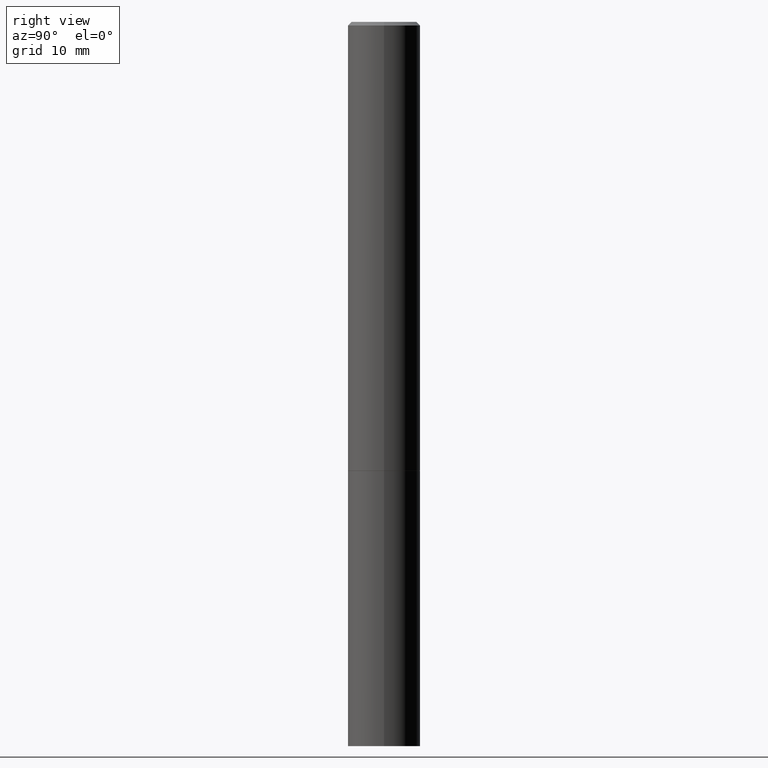
[diagram: clean part render]
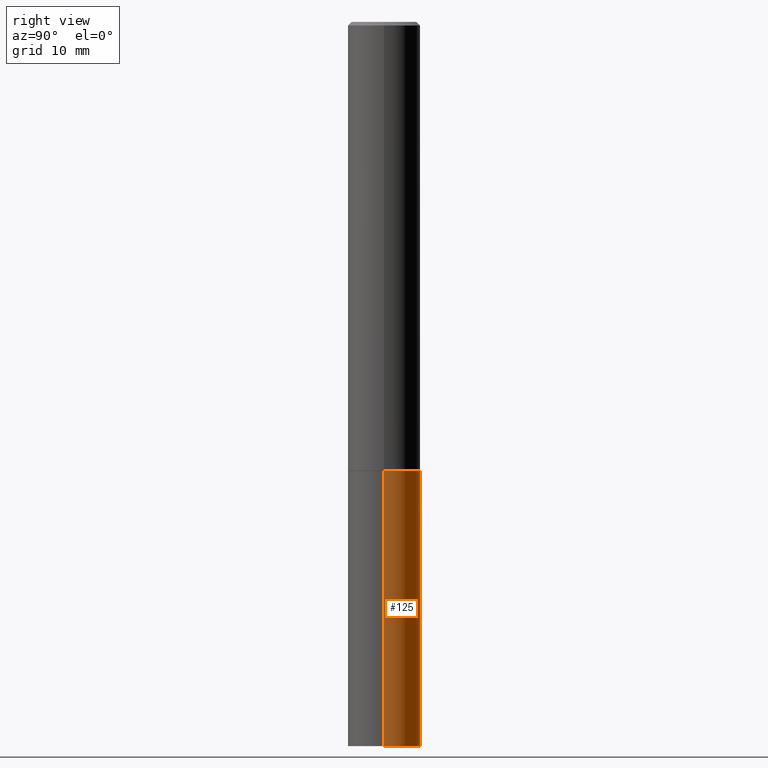
[diagram: same view with one face highlighted and labeled with its STEP entity id]
A machine part, right view. The second image highlights one B-rep face of the part: STEP entity #125.
In plain terms, the highlighted cylindrical surface (edge-blend (fillet) strip) has radius 5 mm, axis along (-0, 0, 1).
Its self-contained STEP definition (entity closure, byte-faithful):
#2 = VERTEX_POINT ( 'NONE', #171 ) ;
#6 = DIRECTION ( 'NONE',  ( -2.445468806185136597E-29, 3.491481338843145583E-15, 1.000000000000000000 ) ) ;
#15 = CARTESIAN_POINT ( 'NONE',  ( 0.1968500000000000250, -9.896953003084776152E-15, -2.440900000000000070 ) ) ;
#34 = ORIENTED_EDGE ( 'NONE', *, *, #342, .F. ) ;
#37 = DIRECTION ( 'NONE',  ( 1.000000000000000000, -6.982962677686267499E-15, 0.000000000000000000 ) ) ;
#48 = EDGE_CURVE ( 'NONE', #252, #2, #187, .T. ) ;
#55 = DIRECTION ( 'NONE',  ( -2.445468806185136877E-29, 3.491481338843145188E-15, 1.000000000000000000 ) ) ;
#80 = AXIS2_PLACEMENT_3D ( 'NONE', #161, #326, #134 ) ;
#81 = LINE ( 'NONE', #189, #244 ) ;
#100 = DIRECTION ( 'NONE',  ( 1.000000000000000000, -6.982962677686267499E-15, 0.000000000000000000 ) ) ;
#112 = VERTEX_POINT ( 'NONE', #219 ) ;
#122 = DIRECTION ( 'NONE',  ( -2.445468806185136597E-29, 3.491481338843145583E-15, 1.000000000000000000 ) ) ;
#125 = ADVANCED_FACE ( 'NONE', ( #216 ), #160, .T. ) ;
#130 = AXIS2_PLACEMENT_3D ( 'NONE', #299, #6, #37 ) ;
#134 = DIRECTION ( 'NONE',  ( 1.000000000000000000, -6.982962677686265922E-15, 4.876176775795935793E-29 ) ) ;
#146 = CARTESIAN_POINT ( 'NONE',  ( 0.1968500000000000250, -1.374596203102541608E-15, 9.598753983154300858E-30 ) ) ;
#160 = CYLINDRICAL_SURFACE ( 'NONE', #80, 0.1968500000000000250 ) ;
#161 = CARTESIAN_POINT ( 'NONE',  ( 0.000000000000000000, 0.000000000000000000, 0.000000000000000000 ) ) ;
#169 = EDGE_LOOP ( 'NONE', ( #292, #323, #202, #34 ) ) ;
#171 = CARTESIAN_POINT ( 'NONE',  ( -0.1968500000000000250, -9.735456040160091980E-15, -2.440900000000000070 ) ) ;
#187 = CIRCLE ( 'NONE', #235, 0.1968500000000000250 ) ;
#189 = CARTESIAN_POINT ( 'NONE',  ( -0.1968500000000000250, 1.398703375343757393E-15, -9.682923725166783677E-30 ) ) ;
#193 = CARTESIAN_POINT ( 'NONE',  ( -0.1968500000000000250, -9.735456040160091980E-15, -3.937000000000000277 ) ) ;
#202 = ORIENTED_EDGE ( 'NONE', *, *, #48, .F. ) ;
#209 = CARTESIAN_POINT ( 'NONE',  ( 5.969144809017300159E-29, -8.522356799982234543E-15, -2.440900000000000070 ) ) ;
#211 = DIRECTION ( 'NONE',  ( -2.445468806185136877E-29, 3.491481338843145188E-15, 1.000000000000000000 ) ) ;
#216 = FACE_OUTER_BOUND ( 'NONE', #169, .T. ) ;
#219 = CARTESIAN_POINT ( 'NONE',  ( 0.1968500000000000250, -1.512055823412800660E-14, -3.937000000000000277 ) ) ;
#235 = AXIS2_PLACEMENT_3D ( 'NONE', #209, #122, #100 ) ;
#244 = VECTOR ( 'NONE', #55, 39.37007874015748143 ) ;
#252 = VERTEX_POINT ( 'NONE', #15 ) ;
#261 = VECTOR ( 'NONE', #211, 39.37007874015748143 ) ;
#292 = ORIENTED_EDGE ( 'NONE', *, *, #366, .T. ) ;
#296 = CIRCLE ( 'NONE', #130, 0.1968500000000000250 ) ;
#299 = CARTESIAN_POINT ( 'NONE',  ( 9.627810689950883669E-29, -1.374596203102546341E-14, -3.937000000000000277 ) ) ;
#307 = VERTEX_POINT ( 'NONE', #193 ) ;
#323 = ORIENTED_EDGE ( 'NONE', *, *, #337, .T. ) ;
#324 = LINE ( 'NONE', #146, #261 ) ;
#326 = DIRECTION ( 'NONE',  ( -2.445468806185136597E-29, 3.491481338843145583E-15, 1.000000000000000000 ) ) ;
#337 = EDGE_CURVE ( 'NONE', #307, #2, #81, .T. ) ;
#342 = EDGE_CURVE ( 'NONE', #112, #252, #324, .T. ) ;
#366 = EDGE_CURVE ( 'NONE', #112, #307, #296, .T. ) ;